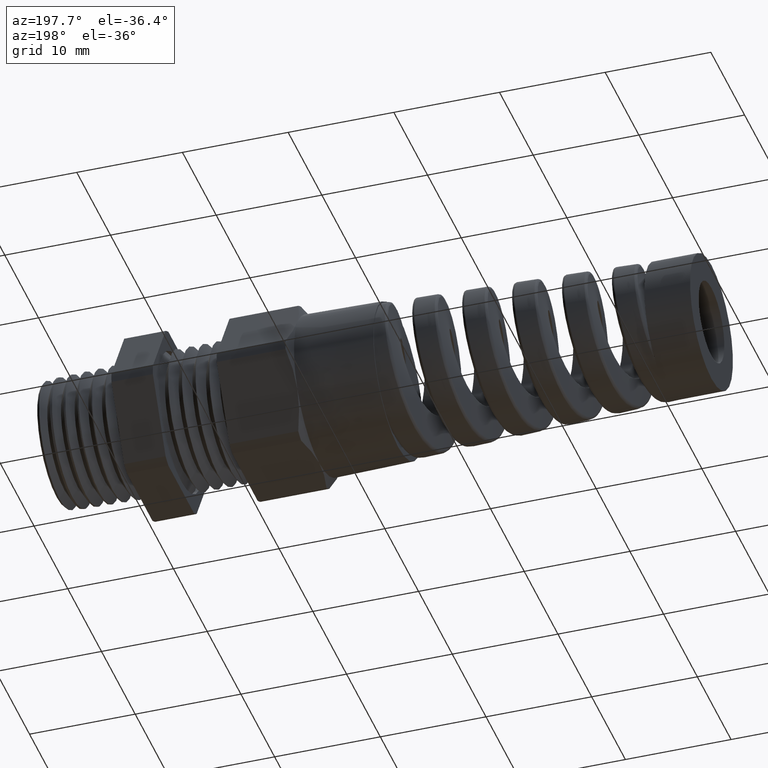
[diagram: clean part render]
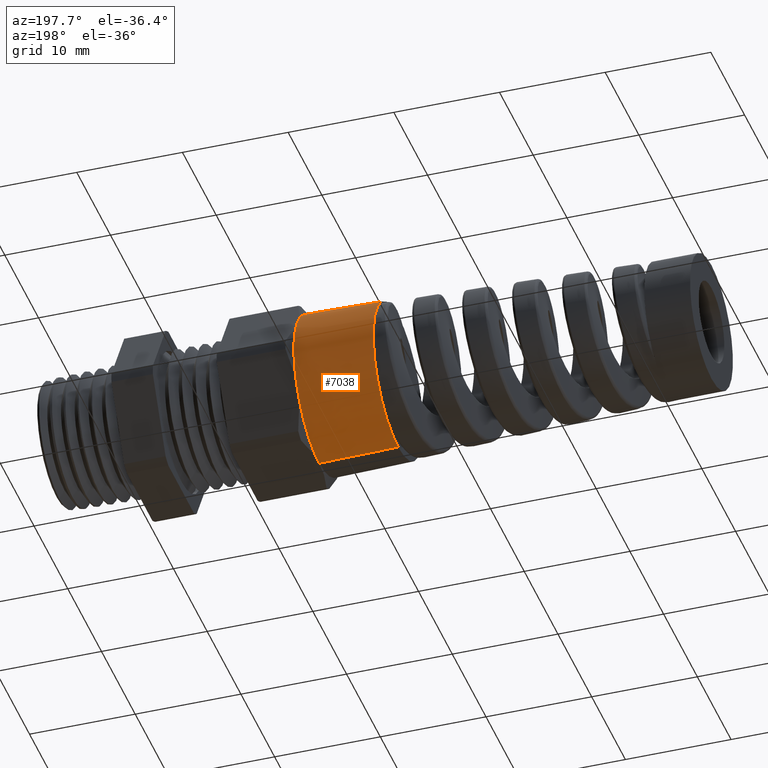
[diagram: same view with one face highlighted and labeled with its STEP entity id]
A machine part, auxiliary view. The second image highlights one B-rep face of the part: STEP entity #7038.
In plain terms, the highlighted conical surface has half-angle 1 deg.
Its self-contained STEP definition (entity closure, byte-faithful):
#1741 = CARTESIAN_POINT ( 'NONE',  ( -0.6687500000000000700, 0.2554774941164091900, 0.1474999999999999400 ) ) ;
#1767 = CARTESIAN_POINT ( 'NONE',  ( -0.6687500000000000700, 0.2554774941164094100, -0.1475000000000000500 ) ) ;
#2540 = DIRECTION ( 'NONE',  ( 0.0000000000000000000, 0.0000000000000000000, 1.000000000000000000 ) ) ;
#2541 = DIRECTION ( 'NONE',  ( -1.000000000000000000, 0.0000000000000000000, 0.0000000000000000000 ) ) ;
#2542 = CARTESIAN_POINT ( 'NONE',  ( -0.6687500000000000700, 0.0000000000000000000, 0.0000000000000000000 ) ) ;
#2543 = AXIS2_PLACEMENT_3D ( 'NONE', #2542, #2541, #2540 ) ;
#2544 = CIRCLE ( 'NONE', #2543, 0.2949999999999997100 ) ;
#2557 = DIRECTION ( 'NONE',  ( 0.0000000000000000000, 0.0000000000000000000, 1.000000000000000000 ) ) ;
#2558 = DIRECTION ( 'NONE',  ( -1.000000000000000000, 0.0000000000000000000, 0.0000000000000000000 ) ) ;
#2559 = CARTESIAN_POINT ( 'NONE',  ( -0.6687500000000000700, 0.0000000000000000000, 0.0000000000000000000 ) ) ;
#2560 = AXIS2_PLACEMENT_3D ( 'NONE', #2559, #2558, #2557 ) ;
#2561 = CIRCLE ( 'NONE', #2560, 0.2949999999999997100 ) ;
#2635 = CARTESIAN_POINT ( 'NONE',  ( -0.9626900000000000500, 0.0000000000000000000, 0.0000000000000000000 ) ) ;
#2689 = DIRECTION ( 'NONE',  ( 0.0000000000000000000, 0.0000000000000000000, 1.000000000000000000 ) ) ;
#2690 = DIRECTION ( 'NONE',  ( -1.000000000000000000, 0.0000000000000000000, 0.0000000000000000000 ) ) ;
#2691 = AXIS2_PLACEMENT_3D ( 'NONE', #2635, #2690, #2689 ) ;
#2692 = CIRCLE ( 'NONE', #2691, 0.2898692582149995400 ) ;
#3014 = CARTESIAN_POINT ( 'NONE',  ( -0.6687500000000000700, 0.0000000000000000000, -0.2950000000000002600 ) ) ;
#3015 = DIRECTION ( 'NONE',  ( 0.9998476951563912700, -2.137303368083796300E-018, -0.01745240643728355000 ) ) ;
#3016 = VECTOR ( 'NONE', #3015, 39.37007874015748100 ) ;
#3017 = CARTESIAN_POINT ( 'NONE',  ( -0.6687500000000000700, -3.612708057484689500E-017, -0.2949999999999997600 ) ) ;
#3018 = LINE ( 'NONE', #3017, #3016 ) ;
#3059 = CARTESIAN_POINT ( 'NONE',  ( -0.9626900000000000500, 0.0000000000000000000, 0.2898692582149995400 ) ) ;
#3060 = CARTESIAN_POINT ( 'NONE',  ( -0.9626900000000000500, -3.581291324963428100E-017, -0.2898692582149995400 ) ) ;
#3112 = CARTESIAN_POINT ( 'NONE',  ( -0.6687500000000000700, 0.0000000000000000000, 0.2949999999999997100 ) ) ;
#3167 = LINE ( 'NONE', #3272, #3271 ) ;
#3270 = DIRECTION ( 'NONE',  ( 0.9998476951563912700, 0.0000000000000000000, 0.01745240643728355000 ) ) ;
#3271 = VECTOR ( 'NONE', #3270, 39.37007874015748100 ) ;
#3272 = CARTESIAN_POINT ( 'NONE',  ( -0.6687500000000000700, 0.0000000000000000000, 0.2949999999999997600 ) ) ;
#3531 = DIRECTION ( 'NONE',  ( 0.0000000000000000000, 0.0000000000000000000, 1.000000000000000000 ) ) ;
#3532 = DIRECTION ( 'NONE',  ( 1.000000000000000000, 0.0000000000000000000, 0.0000000000000000000 ) ) ;
#3533 = CARTESIAN_POINT ( 'NONE',  ( -0.6687500000000000700, 0.0000000000000000000, 0.0000000000000000000 ) ) ;
#3534 = AXIS2_PLACEMENT_3D ( 'NONE', #3533, #3532, #3531 ) ;
#3535 = CONICAL_SURFACE ( 'NONE', #3534, 0.2949999999999997600, 0.01745329251994333400 ) ;
#3536 = FACE_OUTER_BOUND ( 'NONE', #5390, .T. ) ;
#3565 = DIRECTION ( 'NONE',  ( 0.0000000000000000000, 0.0000000000000000000, 1.000000000000000000 ) ) ;
#3566 = DIRECTION ( 'NONE',  ( -1.000000000000000000, 0.0000000000000000000, 0.0000000000000000000 ) ) ;
#3567 = CARTESIAN_POINT ( 'NONE',  ( -0.6687500000000000700, 0.0000000000000000000, 0.0000000000000000000 ) ) ;
#3568 = AXIS2_PLACEMENT_3D ( 'NONE', #3567, #3566, #3565 ) ;
#3573 = CIRCLE ( 'NONE', #3568, 0.2949999999999997100 ) ;
#4866 = VERTEX_POINT ( 'NONE', #1741 ) ;
#4877 = VERTEX_POINT ( 'NONE', #1767 ) ;
#5234 = EDGE_CURVE ( 'NONE', #5618, #4866, #2561, .T. ) ;
#5243 = EDGE_CURVE ( 'NONE', #4866, #4877, #2544, .T. ) ;
#5317 = EDGE_CURVE ( 'NONE', #5608, #5606, #2692, .T. ) ;
#5390 = EDGE_LOOP ( 'NONE', ( #6735, #6313, #6243, #6347, #6124, #5970 ) ) ;
#5537 = EDGE_CURVE ( 'NONE', #5606, #5540, #3018, .T. ) ;
#5540 = VERTEX_POINT ( 'NONE', #3014 ) ;
#5606 = VERTEX_POINT ( 'NONE', #3060 ) ;
#5608 = VERTEX_POINT ( 'NONE', #3059 ) ;
#5618 = VERTEX_POINT ( 'NONE', #3112 ) ;
#5666 = EDGE_CURVE ( 'NONE', #5608, #5618, #3167, .T. ) ;
#5970 = ORIENTED_EDGE ( 'NONE', *, *, #7295, .T. ) ;
#6124 = ORIENTED_EDGE ( 'NONE', *, *, #5243, .T. ) ;
#6243 = ORIENTED_EDGE ( 'NONE', *, *, #5666, .T. ) ;
#6313 = ORIENTED_EDGE ( 'NONE', *, *, #5317, .F. ) ;
#6347 = ORIENTED_EDGE ( 'NONE', *, *, #5234, .T. ) ;
#6735 = ORIENTED_EDGE ( 'NONE', *, *, #5537, .F. ) ;
#7038 = ADVANCED_FACE ( 'NONE', ( #3536 ), #3535, .T. ) ;
#7295 = EDGE_CURVE ( 'NONE', #4877, #5540, #3573, .T. ) ;